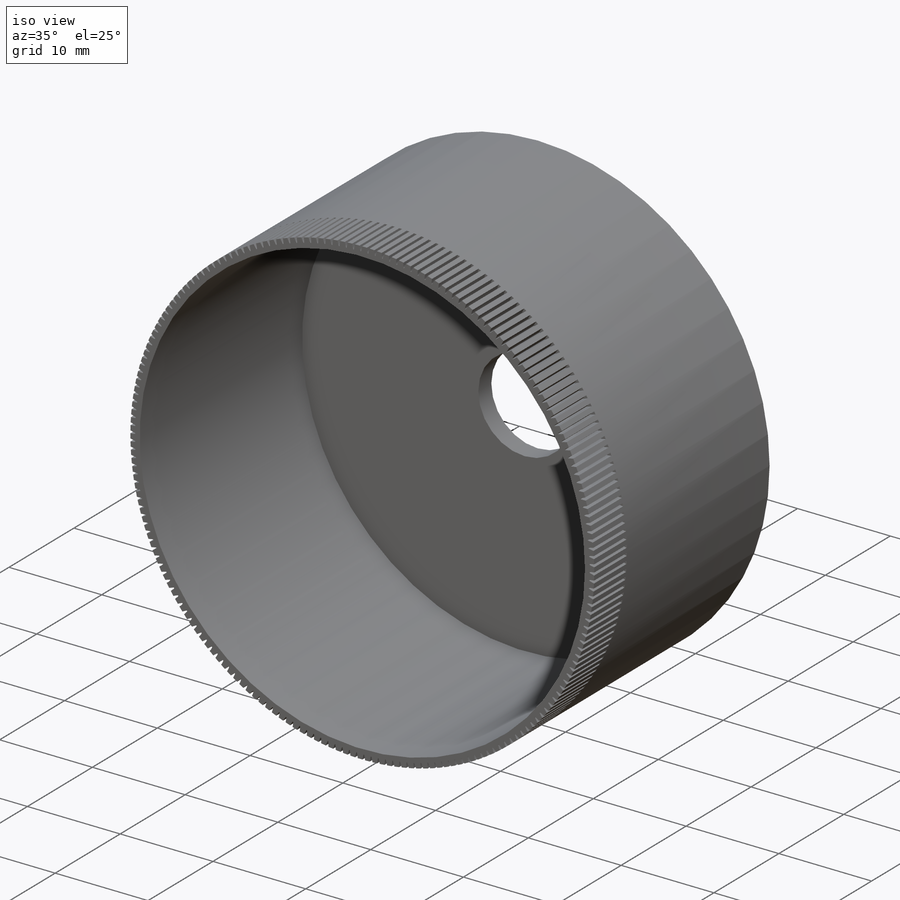
[diagram: iso view]
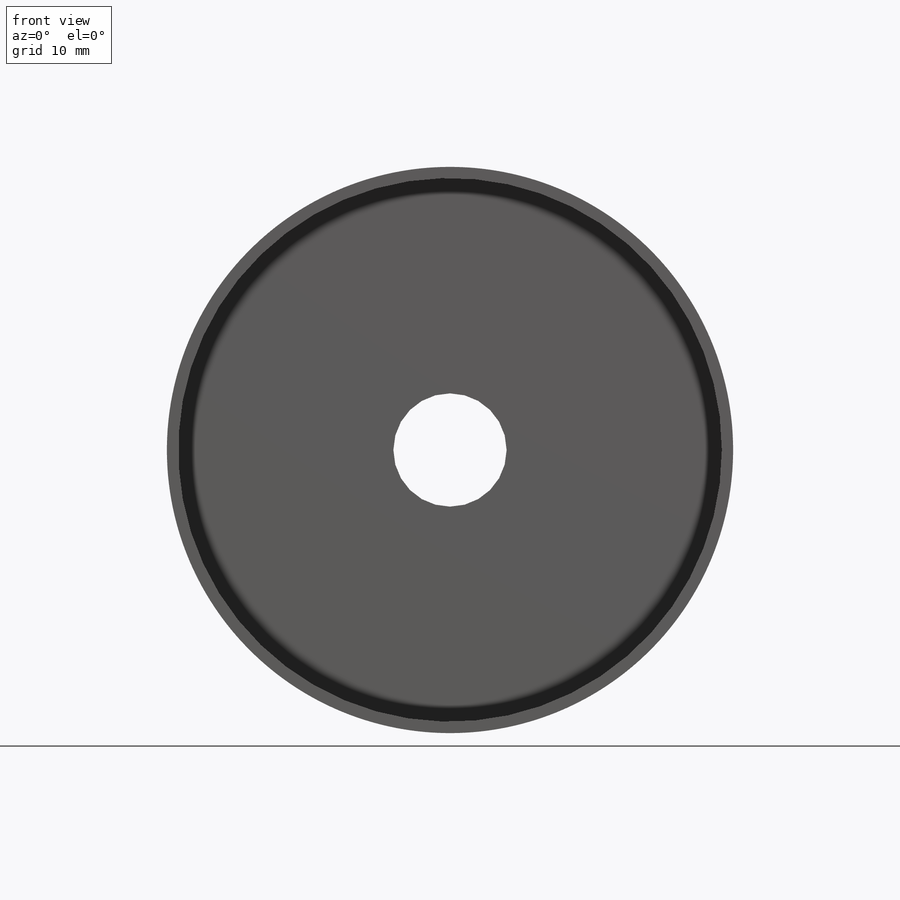
[diagram: front view]
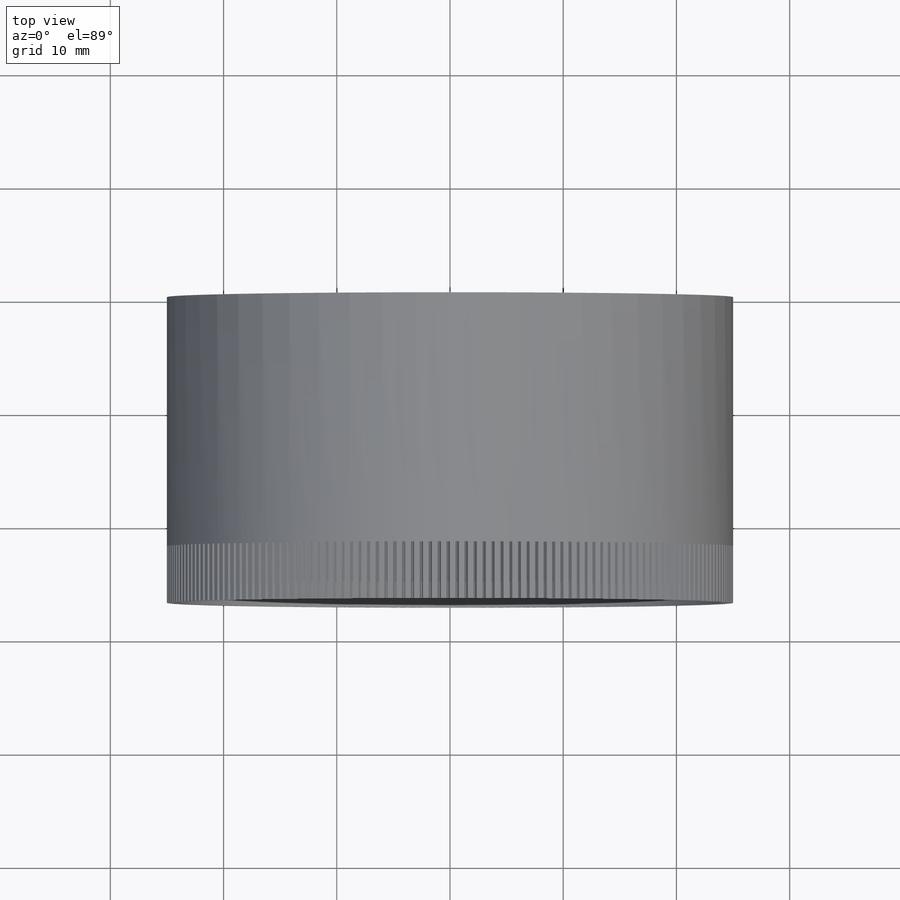
[diagram: top view]
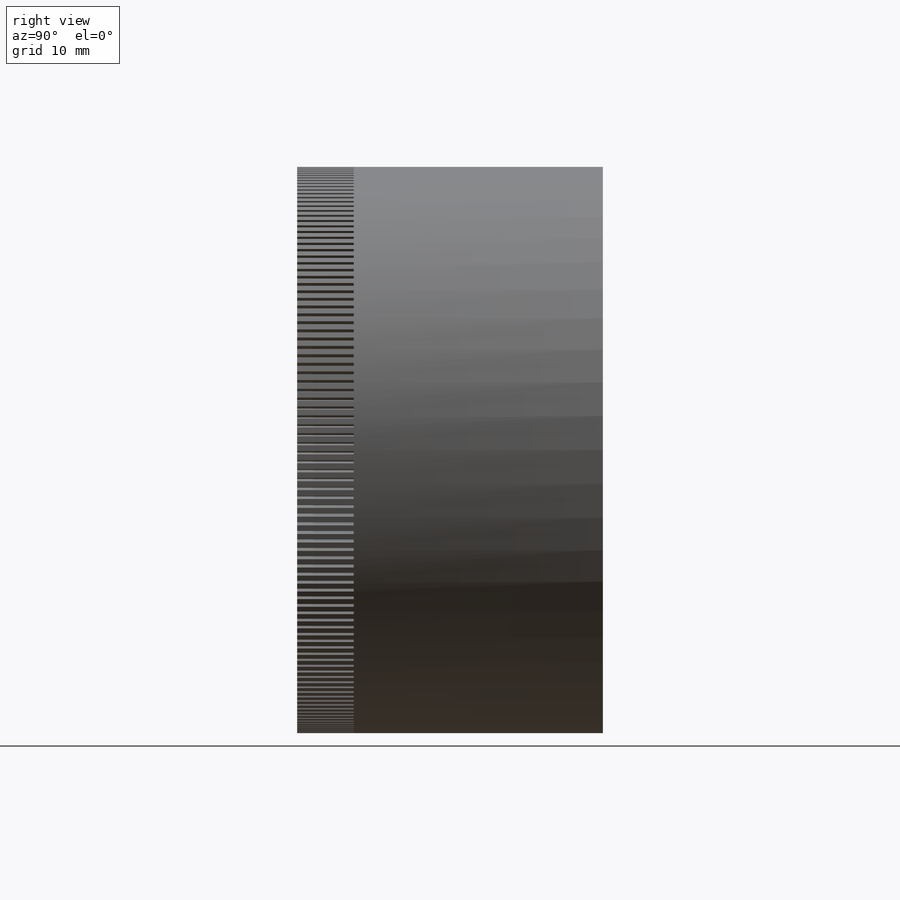
[diagram: right view]
SOLIDWORKS PART (.sldprt)
format: sldprt  version: not decoded by parser v0  size: 682,496 bytes
history: native  units: mm
features: sketch x4, plane x3, cut_extrude x3, material x1, extrude x1, pattern_circular x1 (+9 scaffold rows collapsed)
feature tree (22):
  scaffold x9  (default folders/planes/origin — collapsed)
  material  "材质 <未指定>"
  plane  "前视基准面"
  plane  "上视基准面"
  plane  "右视基准面"
  sketch  "草图1"  dims[D1=~49.093897mm]
  extrude  "凸台-拉伸1"  Depth=27mm
  sketch  "草图2"  dims[D1=~8.110162mm]
  cut_extrude  "切除-拉伸1"  Depth=25mm
  sketch  "草图3"  dims[D1=~5.394122mm]
  cut_extrude  "切除-拉伸2"  Depth=25mm
  sketch  "草图4"
  cut_extrude  "切除-拉伸5"  Depth=5mm
  pattern_circular  "阵列(圆周)1"  Count=198 Angle=360deg
decode coverage: 8 of 9 modeling features carry decoded parameters
note: ~ marks probable driven/reference dimensions
note: suppression state not decoded; provenance and decode notes live in map.json
